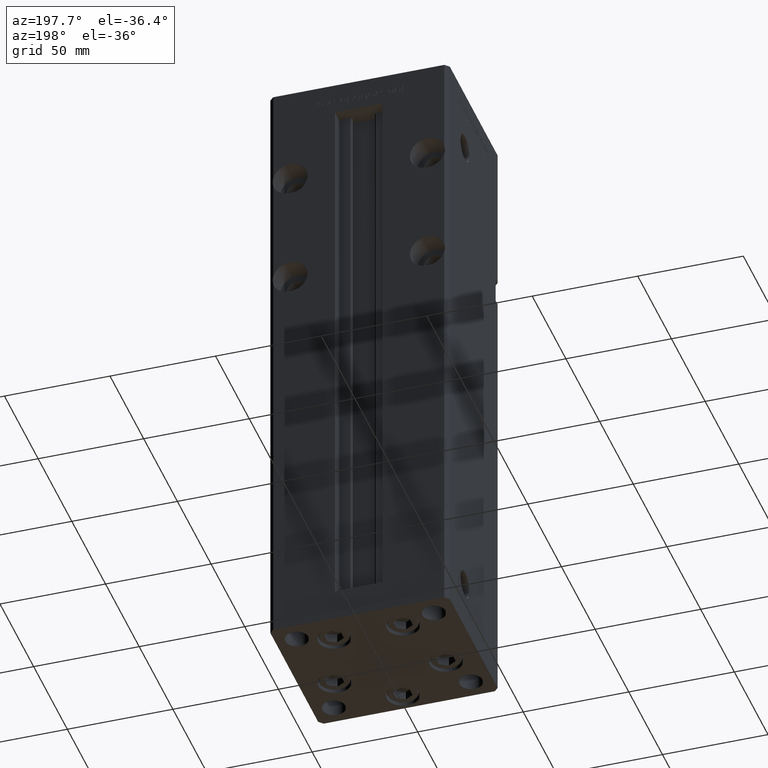
[diagram: clean part render]
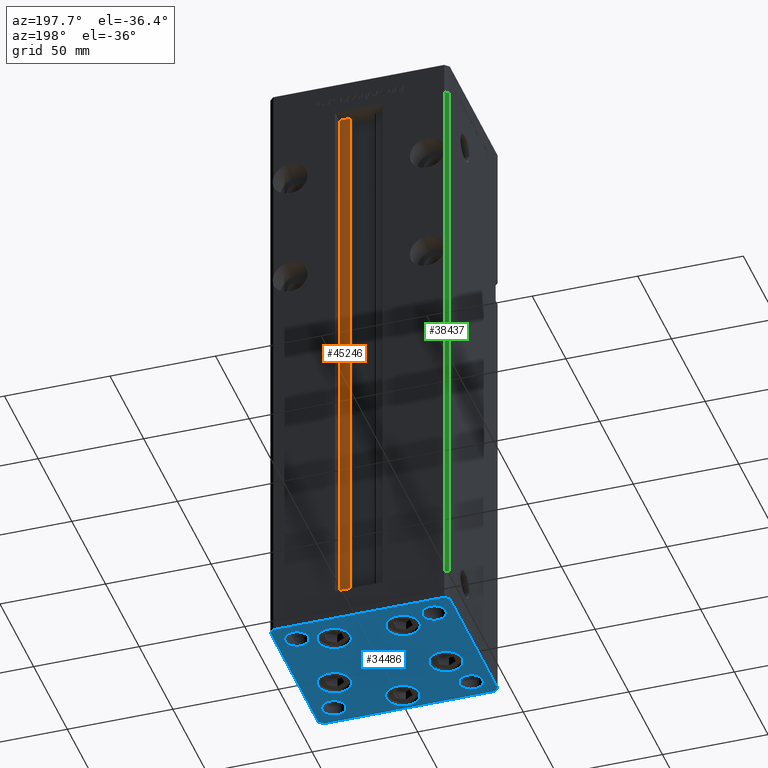
[diagram: same view with three faces highlighted in distinct colors, each labeled with its STEP entity id]
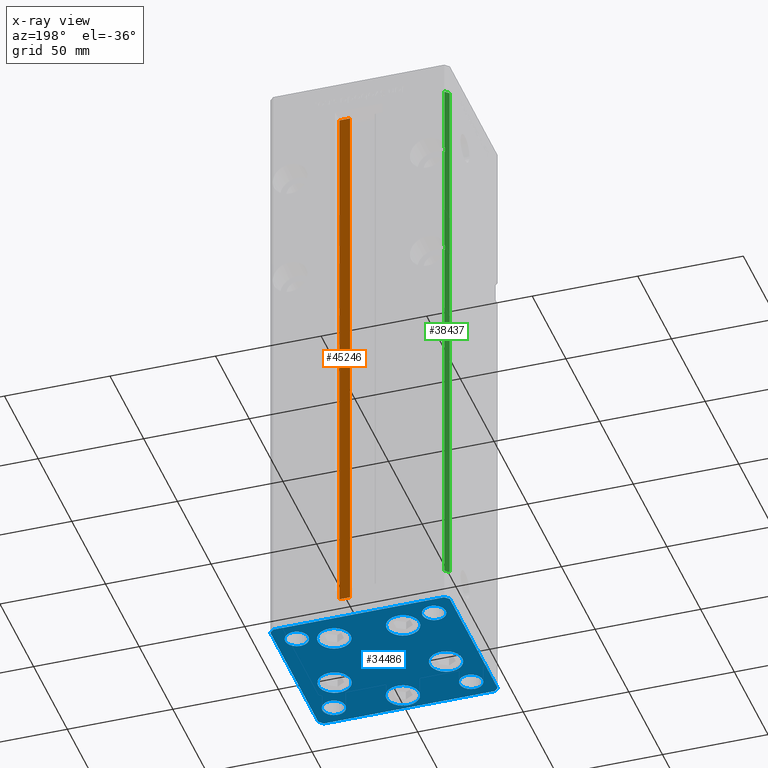
[diagram: x-ray of the same camera — body ghosted, the three highlighted faces saturated]
A machine part, auxiliary view with three faces highlighted in distinct colors.
The next image is the same camera in x-ray (body ghosted, the three faces saturated) — at least one of them is partly hidden behind the body in this view.
Their STEP definitions:

[orange] entity #45246 — the highlighted planar face has unit normal (0, -1, 0).
#4145 = VERTEX_POINT ( 'NONE', #52043 ) ;
#6254 = EDGE_CURVE ( 'NONE', #19799, #13119, #45784, .T. ) ;
#6430 = ORIENTED_EDGE ( 'NONE', *, *, #21875, .F. ) ;
#7976 = CARTESIAN_POINT ( 'NONE',  ( 11.24999999999999822, 31.00000000000000000, 0.000000000000000000 ) ) ;
#8127 = VECTOR ( 'NONE', #38447, 1000.000000000000000 ) ;
#8983 = CARTESIAN_POINT ( 'NONE',  ( 6.183333333333997928, 31.00000000000000000, 0.000000000000000000 ) ) ;
#11383 = FACE_OUTER_BOUND ( 'NONE', #50034, .T. ) ;
#13119 = VERTEX_POINT ( 'NONE', #30303 ) ;
#13711 = AXIS2_PLACEMENT_3D ( 'NONE', #15439, #14898, #36110 ) ;
#13820 = CARTESIAN_POINT ( 'NONE',  ( 6.183333333333997928, 31.00000000000000000, 0.000000000000000000 ) ) ;
#14898 = DIRECTION ( 'NONE',  ( 0.000000000000000000, -1.000000000000000000, 0.000000000000000000 ) ) ;
#15427 = CARTESIAN_POINT ( 'NONE',  ( 11.24999999999999822, 31.00000000000000000, 268.5000000000000000 ) ) ;
#15439 = CARTESIAN_POINT ( 'NONE',  ( 6.183333333333997928, 31.00000000000000000, 0.000000000000000000 ) ) ;
#17943 = ORIENTED_EDGE ( 'NONE', *, *, #6254, .T. ) ;
#19321 = CARTESIAN_POINT ( 'NONE',  ( 0.000000000000000000, 31.00000000000000000, 268.5000000000000000 ) ) ;
#19590 = LINE ( 'NONE', #19321, #44996 ) ;
#19799 = VERTEX_POINT ( 'NONE', #8983 ) ;
#20256 = EDGE_CURVE ( 'NONE', #48472, #13119, #19590, .T. ) ;
#20306 = VECTOR ( 'NONE', #44540, 1000.000000000000000 ) ;
#21875 = EDGE_CURVE ( 'NONE', #19799, #4145, #46488, .T. ) ;
#23617 = DIRECTION ( 'NONE',  ( -1.000000000000000000, 0.000000000000000000, 0.000000000000000000 ) ) ;
#30204 = DIRECTION ( 'NONE',  ( -0.000000000000000000, -0.000000000000000000, 1.000000000000000000 ) ) ;
#30303 = CARTESIAN_POINT ( 'NONE',  ( 6.183333333333997928, 31.00000000000000000, 268.5000000000000000 ) ) ;
#31165 = EDGE_CURVE ( 'NONE', #4145, #48472, #44804, .T. ) ;
#34699 = VECTOR ( 'NONE', #30204, 1000.000000000000000 ) ;
#36110 = DIRECTION ( 'NONE',  ( 0.000000000000000000, -0.000000000000000000, -1.000000000000000000 ) ) ;
#38176 = CARTESIAN_POINT ( 'NONE',  ( 6.183333333333997928, 31.00000000000000000, 0.000000000000000000 ) ) ;
#38447 = DIRECTION ( 'NONE',  ( 1.000000000000000000, 0.000000000000000000, 0.000000000000000000 ) ) ;
#40658 = ORIENTED_EDGE ( 'NONE', *, *, #31165, .F. ) ;
#44540 = DIRECTION ( 'NONE',  ( -0.000000000000000000, -0.000000000000000000, 1.000000000000000000 ) ) ;
#44804 = LINE ( 'NONE', #7976, #20306 ) ;
#44996 = VECTOR ( 'NONE', #23617, 1000.000000000000000 ) ;
#45246 = ADVANCED_FACE ( 'NONE', ( #11383 ), #52251, .F. ) ;
#45784 = LINE ( 'NONE', #13820, #34699 ) ;
#46488 = LINE ( 'NONE', #38176, #8127 ) ;
#46524 = ORIENTED_EDGE ( 'NONE', *, *, #20256, .F. ) ;
#48472 = VERTEX_POINT ( 'NONE', #15427 ) ;
#50034 = EDGE_LOOP ( 'NONE', ( #40658, #6430, #17943, #46524 ) ) ;
#52043 = CARTESIAN_POINT ( 'NONE',  ( 11.24999999999999822, 31.00000000000000000, 0.000000000000000000 ) ) ;
#52251 = PLANE ( 'NONE',  #13711 ) ;

[blue] entity #34486 — the highlighted planar face has unit normal (0, 0, -1).
#72 = VECTOR ( 'NONE', #30770, 1000.000000000000000 ) ;
#333 = DIRECTION ( 'NONE',  ( 1.000000000000000000, 0.000000000000000000, 0.000000000000000000 ) ) ;
#1028 = CARTESIAN_POINT ( 'NONE',  ( -38.00000000000000000, 27.50000000000000355, 0.000000000000000000 ) ) ;
#1090 = CIRCLE ( 'NONE', #20878, 5.499999999999998224 ) ;
#1250 = AXIS2_PLACEMENT_3D ( 'NONE', #43755, #39467, #3432 ) ;
#1283 = DIRECTION ( 'NONE',  ( 0.000000000000000000, -0.000000000000000000, -1.000000000000000000 ) ) ;
#1842 = DIRECTION ( 'NONE',  ( 1.000000000000000000, 0.000000000000000000, 0.000000000000000000 ) ) ;
#1874 = CARTESIAN_POINT ( 'NONE',  ( 3.429011037612589276E-15, -28.00000000000000000, 0.000000000000000000 ) ) ;
#1927 = DIRECTION ( 'NONE',  ( 0.000000000000000000, -0.000000000000000000, -1.000000000000000000 ) ) ;
#2169 = FACE_BOUND ( 'NONE', #20920, .T. ) ;
#2199 = DIRECTION ( 'NONE',  ( -0.000000000000000000, 0.000000000000000000, 1.000000000000000000 ) ) ;
#2286 = CARTESIAN_POINT ( 'NONE',  ( 42.50000000000000711, -35.50000000000000000, 0.000000000000000000 ) ) ;
#2711 = DIRECTION ( 'NONE',  ( -1.000000000000000000, -3.426614273534436165E-16, 0.000000000000000000 ) ) ;
#2869 = VERTEX_POINT ( 'NONE', #5597 ) ;
#2935 = EDGE_CURVE ( 'NONE', #2869, #47915, #16746, .T. ) ;
#3007 = EDGE_LOOP ( 'NONE', ( #23002, #47605 ) ) ;
#3257 = CARTESIAN_POINT ( 'NONE',  ( 42.49999999999992895, 35.50000000000000000, 0.000000000000000000 ) ) ;
#3432 = DIRECTION ( 'NONE',  ( 1.000000000000000000, 0.000000000000000000, 0.000000000000000000 ) ) ;
#3456 = VERTEX_POINT ( 'NONE', #17581 ) ;
#3487 = EDGE_CURVE ( 'NONE', #17276, #41020, #39065, .T. ) ;
#4026 = VECTOR ( 'NONE', #25053, 1000.000000000000000 ) ;
#4094 = CARTESIAN_POINT ( 'NONE',  ( -42.50000000000000000, -35.50000000000000711, 0.000000000000000000 ) ) ;
#4370 = VERTEX_POINT ( 'NONE', #47097 ) ;
#4487 = VERTEX_POINT ( 'NONE', #15408 ) ;
#4777 = AXIS2_PLACEMENT_3D ( 'NONE', #15726, #14928, #10896 ) ;
#4826 = VERTEX_POINT ( 'NONE', #19904 ) ;
#4971 = VERTEX_POINT ( 'NONE', #1028 ) ;
#5134 = DIRECTION ( 'NONE',  ( -0.000000000000000000, 0.000000000000000000, 1.000000000000000000 ) ) ;
#5347 = EDGE_CURVE ( 'NONE', #41020, #40822, #8704, .T. ) ;
#5348 = VERTEX_POINT ( 'NONE', #9749 ) ;
#5597 = CARTESIAN_POINT ( 'NONE',  ( 27.00000000000000355, -27.49999999999999645, 0.000000000000000000 ) ) ;
#5931 = FACE_BOUND ( 'NONE', #11995, .T. ) ;
#5955 = DIRECTION ( 'NONE',  ( 1.000000000000000000, 0.000000000000000000, 0.000000000000000000 ) ) ;
#6300 = LINE ( 'NONE', #2286, #72 ) ;
#6436 = CARTESIAN_POINT ( 'NONE',  ( -40.49999999999999289, -37.50000000000002132, 0.000000000000000000 ) ) ;
#7133 = EDGE_CURVE ( 'NONE', #4971, #38888, #32150, .T. ) ;
#7553 = AXIS2_PLACEMENT_3D ( 'NONE', #35896, #40199, #49040 ) ;
#7617 = EDGE_LOOP ( 'NONE', ( #19365, #29508 ) ) ;
#8085 = VERTEX_POINT ( 'NONE', #10336 ) ;
#8456 = AXIS2_PLACEMENT_3D ( 'NONE', #38663, #22539, #30074 ) ;
#8515 = DIRECTION ( 'NONE',  ( 1.000000000000000000, 0.000000000000000000, 0.000000000000000000 ) ) ;
#8704 = LINE ( 'NONE', #29402, #38959 ) ;
#8911 = EDGE_CURVE ( 'NONE', #15467, #4487, #37363, .T. ) ;
#9647 = ORIENTED_EDGE ( 'NONE', *, *, #49494, .T. ) ;
#9749 = CARTESIAN_POINT ( 'NONE',  ( 42.49999999999992895, 35.50000000000000000, 0.000000000000000000 ) ) ;
#9968 = DIRECTION ( 'NONE',  ( 1.000000000000000000, 0.000000000000000000, 0.000000000000000000 ) ) ;
#10078 = CARTESIAN_POINT ( 'NONE',  ( -42.50000000000000711, 35.49999999999997158, 0.000000000000000000 ) ) ;
#10106 = CIRCLE ( 'NONE', #7553, 7.750000000000003553 ) ;
#10336 = CARTESIAN_POINT ( 'NONE',  ( 8.572913342905422951, 22.75000000000000000, 0.000000000000000000 ) ) ;
#10400 = VERTEX_POINT ( 'NONE', #26484 ) ;
#10670 = VERTEX_POINT ( 'NONE', #16780 ) ;
#10797 = DIRECTION ( 'NONE',  ( -0.000000000000000000, 0.000000000000000000, 1.000000000000000000 ) ) ;
#10896 = DIRECTION ( 'NONE',  ( 1.000000000000000000, 0.000000000000000000, 0.000000000000000000 ) ) ;
#11189 = CIRCLE ( 'NONE', #24937, 5.499999999999998224 ) ;
#11305 = CARTESIAN_POINT ( 'NONE',  ( 40.49999999999991473, 37.50000000000000711, 0.000000000000000000 ) ) ;
#11734 = AXIS2_PLACEMENT_3D ( 'NONE', #1874, #35209, #23124 ) ;
#11995 = EDGE_LOOP ( 'NONE', ( #50465, #51114 ) ) ;
#12753 = EDGE_CURVE ( 'NONE', #4487, #15467, #38320, .T. ) ;
#12967 = EDGE_LOOP ( 'NONE', ( #46463, #34701 ) ) ;
#13225 = ORIENTED_EDGE ( 'NONE', *, *, #27574, .T. ) ;
#13349 = DIRECTION ( 'NONE',  ( 0.000000000000000000, -0.000000000000000000, -1.000000000000000000 ) ) ;
#13487 = FACE_BOUND ( 'NONE', #7617, .T. ) ;
#13800 = EDGE_LOOP ( 'NONE', ( #46885, #31437 ) ) ;
#14928 = DIRECTION ( 'NONE',  ( 0.000000000000000000, -0.000000000000000000, -1.000000000000000000 ) ) ;
#15143 = ORIENTED_EDGE ( 'NONE', *, *, #23900, .T. ) ;
#15189 = EDGE_LOOP ( 'NONE', ( #47550, #52707 ) ) ;
#15243 = VERTEX_POINT ( 'NONE', #28329 ) ;
#15371 = LINE ( 'NONE', #3257, #34626 ) ;
#15408 = CARTESIAN_POINT ( 'NONE',  ( -34.14865316429776954, -9.333333333333337478, 0.000000000000000000 ) ) ;
#15467 = VERTEX_POINT ( 'NONE', #17157 ) ;
#15726 = CARTESIAN_POINT ( 'NONE',  ( -26.39865316429776954, -9.333333333333337478, 0.000000000000000000 ) ) ;
#16125 = VECTOR ( 'NONE', #2711, 1000.000000000000000 ) ;
#16126 = EDGE_CURVE ( 'NONE', #47915, #2869, #40584, .T. ) ;
#16151 = EDGE_CURVE ( 'NONE', #38560, #3456, #1090, .T. ) ;
#16246 = ORIENTED_EDGE ( 'NONE', *, *, #5347, .T. ) ;
#16387 = CIRCLE ( 'NONE', #35274, 5.499999999999998224 ) ;
#16698 = CIRCLE ( 'NONE', #23565, 7.750000000000000000 ) ;
#16746 = CIRCLE ( 'NONE', #1250, 5.499999999999998224 ) ;
#16780 = CARTESIAN_POINT ( 'NONE',  ( -42.50000000000000000, -35.50000000000000711, 0.000000000000000000 ) ) ;
#16926 = VECTOR ( 'NONE', #21029, 1000.000000000000000 ) ;
#16960 = ORIENTED_EDGE ( 'NONE', *, *, #48512, .T. ) ;
#17157 = CARTESIAN_POINT ( 'NONE',  ( -18.64865316429776954, -9.333333333333335702, 0.000000000000000000 ) ) ;
#17276 = VERTEX_POINT ( 'NONE', #6436 ) ;
#17500 = CARTESIAN_POINT ( 'NONE',  ( -42.50000000000000711, 35.49999999999997158, 0.000000000000000000 ) ) ;
#17581 = CARTESIAN_POINT ( 'NONE',  ( 38.00000000000000000, 27.49999999999999645, 0.000000000000000000 ) ) ;
#17702 = DIRECTION ( 'NONE',  ( 1.000000000000000000, 0.000000000000000000, 0.000000000000000000 ) ) ;
#17785 = CARTESIAN_POINT ( 'NONE',  ( 18.64865316429776954, -9.333333333333330373, 0.000000000000000000 ) ) ;
#18017 = VERTEX_POINT ( 'NONE', #24749 ) ;
#18106 = EDGE_CURVE ( 'NONE', #4370, #4826, #29454, .T. ) ;
#18309 = EDGE_CURVE ( 'NONE', #18017, #21927, #47474, .T. ) ;
#18620 = CARTESIAN_POINT ( 'NONE',  ( -40.50000000000000711, 37.49999999999997868, 0.000000000000000000 ) ) ;
#18881 = CARTESIAN_POINT ( 'NONE',  ( -32.50000000000000000, 27.50000000000000355, 0.000000000000000000 ) ) ;
#19365 = ORIENTED_EDGE ( 'NONE', *, *, #46930, .F. ) ;
#19802 = VECTOR ( 'NONE', #24577, 1000.000000000000000 ) ;
#19904 = CARTESIAN_POINT ( 'NONE',  ( -8.572913342905431833, 22.74999999999999645, 0.000000000000000000 ) ) ;
#20112 = DIRECTION ( 'NONE',  ( 1.000000000000000000, 0.000000000000000000, 0.000000000000000000 ) ) ;
#20366 = VERTEX_POINT ( 'NONE', #20612 ) ;
#20523 = CARTESIAN_POINT ( 'NONE',  ( 26.39865316429776954, -9.333333333333330373, 0.000000000000000000 ) ) ;
#20612 = CARTESIAN_POINT ( 'NONE',  ( 40.49999999999991473, 37.50000000000000711, 0.000000000000000000 ) ) ;
#20878 = AXIS2_PLACEMENT_3D ( 'NONE', #30956, #2199, #51384 ) ;
#20920 = EDGE_LOOP ( 'NONE', ( #35790, #45671 ) ) ;
#21029 = DIRECTION ( 'NONE',  ( 0.7071067811865463515, -0.7071067811865487940, 0.000000000000000000 ) ) ;
#21042 = VECTOR ( 'NONE', #40857, 1000.000000000000000 ) ;
#21064 = CARTESIAN_POINT ( 'NONE',  ( -40.50000000000000711, 37.49999999999997868, 0.000000000000000000 ) ) ;
#21809 = FACE_BOUND ( 'NONE', #31695, .T. ) ;
#21927 = VERTEX_POINT ( 'NONE', #34408 ) ;
#21976 = VERTEX_POINT ( 'NONE', #27166 ) ;
#22032 = DIRECTION ( 'NONE',  ( 1.000000000000000000, 0.000000000000000000, 0.000000000000000000 ) ) ;
#22207 = CARTESIAN_POINT ( 'NONE',  ( 26.39865316429776954, -9.333333333333330373, 0.000000000000000000 ) ) ;
#22539 = DIRECTION ( 'NONE',  ( 0.000000000000000000, -0.000000000000000000, -1.000000000000000000 ) ) ;
#22800 = ORIENTED_EDGE ( 'NONE', *, *, #31421, .T. ) ;
#23002 = ORIENTED_EDGE ( 'NONE', *, *, #18106, .T. ) ;
#23124 = DIRECTION ( 'NONE',  ( 1.000000000000000000, 0.000000000000000000, 0.000000000000000000 ) ) ;
#23451 = AXIS2_PLACEMENT_3D ( 'NONE', #52201, #1927, #51654 ) ;
#23518 = DIRECTION ( 'NONE',  ( 1.000000000000000000, 0.000000000000000000, 0.000000000000000000 ) ) ;
#23565 = AXIS2_PLACEMENT_3D ( 'NONE', #41654, #46723, #22032 ) ;
#23900 = EDGE_CURVE ( 'NONE', #36788, #21976, #42523, .T. ) ;
#23949 = CARTESIAN_POINT ( 'NONE',  ( -40.49999999999999289, -37.50000000000002132, 0.000000000000000000 ) ) ;
#24056 = AXIS2_PLACEMENT_3D ( 'NONE', #38104, #1283, #17702 ) ;
#24087 = EDGE_LOOP ( 'NONE', ( #25551, #40829 ) ) ;
#24577 = DIRECTION ( 'NONE',  ( -0.7071067811865463515, -0.7071067811865487940, 0.000000000000000000 ) ) ;
#24660 = EDGE_LOOP ( 'NONE', ( #22800, #37038, #16246, #27404, #9647, #51036, #39898, #13225 ) ) ;
#24749 = CARTESIAN_POINT ( 'NONE',  ( -38.00000000000000000, -27.49999999999999645, 0.000000000000000000 ) ) ;
#24937 = AXIS2_PLACEMENT_3D ( 'NONE', #34268, #30243, #23518 ) ;
#25053 = DIRECTION ( 'NONE',  ( 9.773090005503140331E-17, -1.000000000000000000, 0.000000000000000000 ) ) ;
#25551 = ORIENTED_EDGE ( 'NONE', *, *, #16126, .T. ) ;
#25809 = VERTEX_POINT ( 'NONE', #18620 ) ;
#26400 = VERTEX_POINT ( 'NONE', #10078 ) ;
#26484 = CARTESIAN_POINT ( 'NONE',  ( -7.749999999999996447, -28.00000000000000000, 0.000000000000000000 ) ) ;
#26954 = EDGE_CURVE ( 'NONE', #10400, #15243, #34906, .T. ) ;
#27166 = CARTESIAN_POINT ( 'NONE',  ( 34.14865316429776954, -9.333333333333328596, 0.000000000000000000 ) ) ;
#27288 = AXIS2_PLACEMENT_3D ( 'NONE', #42484, #5134, #9968 ) ;
#27404 = ORIENTED_EDGE ( 'NONE', *, *, #42229, .T. ) ;
#27574 = EDGE_CURVE ( 'NONE', #26400, #10670, #50277, .T. ) ;
#27982 = LINE ( 'NONE', #11305, #16125 ) ;
#28020 = DIRECTION ( 'NONE',  ( 1.000000000000000000, 0.000000000000000000, 0.000000000000000000 ) ) ;
#28171 = DIRECTION ( 'NONE',  ( 0.000000000000000000, -0.000000000000000000, -1.000000000000000000 ) ) ;
#28329 = CARTESIAN_POINT ( 'NONE',  ( 7.750000000000003553, -28.00000000000000000, 0.000000000000000000 ) ) ;
#28824 = AXIS2_PLACEMENT_3D ( 'NONE', #22207, #13349, #49888 ) ;
#29119 = LINE ( 'NONE', #21064, #19802 ) ;
#29402 = CARTESIAN_POINT ( 'NONE',  ( 40.50000000000000000, -37.50000000000000711, 0.000000000000000000 ) ) ;
#29454 = CIRCLE ( 'NONE', #32028, 7.750000000000000000 ) ;
#29508 = ORIENTED_EDGE ( 'NONE', *, *, #7133, .F. ) ;
#29876 = PLANE ( 'NONE',  #27288 ) ;
#30020 = CIRCLE ( 'NONE', #24056, 7.750000000000003553 ) ;
#30074 = DIRECTION ( 'NONE',  ( 1.000000000000000000, 0.000000000000000000, 0.000000000000000000 ) ) ;
#30243 = DIRECTION ( 'NONE',  ( -0.000000000000000000, 0.000000000000000000, 1.000000000000000000 ) ) ;
#30451 = CIRCLE ( 'NONE', #41611, 7.750000000000000000 ) ;
#30665 = FACE_BOUND ( 'NONE', #15189, .T. ) ;
#30770 = DIRECTION ( 'NONE',  ( -1.172770800660376741E-15, 1.000000000000000000, 0.000000000000000000 ) ) ;
#30926 = FACE_BOUND ( 'NONE', #12967, .T. ) ;
#30956 = CARTESIAN_POINT ( 'NONE',  ( 32.50000000000000000, 27.49999999999999645, 0.000000000000000000 ) ) ;
#31028 = CARTESIAN_POINT ( 'NONE',  ( 40.50000000000000000, -37.50000000000000711, 0.000000000000000000 ) ) ;
#31421 = EDGE_CURVE ( 'NONE', #10670, #17276, #44682, .T. ) ;
#31437 = ORIENTED_EDGE ( 'NONE', *, *, #18309, .T. ) ;
#31650 = CIRCLE ( 'NONE', #8456, 5.499999999999998224 ) ;
#31695 = EDGE_LOOP ( 'NONE', ( #15143, #16960 ) ) ;
#31749 = DIRECTION ( 'NONE',  ( -0.7071067811865474617, 0.7071067811865474617, 0.000000000000000000 ) ) ;
#32028 = AXIS2_PLACEMENT_3D ( 'NONE', #37352, #37874, #1842 ) ;
#32150 = CIRCLE ( 'NONE', #33850, 5.499999999999998224 ) ;
#32718 = CARTESIAN_POINT ( 'NONE',  ( -16.32291334290543006, 22.74999999999999645, 0.000000000000000000 ) ) ;
#33850 = AXIS2_PLACEMENT_3D ( 'NONE', #18881, #10797, #5955 ) ;
#34052 = EDGE_CURVE ( 'NONE', #44783, #8085, #10106, .T. ) ;
#34268 = CARTESIAN_POINT ( 'NONE',  ( -32.50000000000000000, 27.50000000000000355, 0.000000000000000000 ) ) ;
#34408 = CARTESIAN_POINT ( 'NONE',  ( -27.00000000000000355, -27.49999999999999645, 0.000000000000000000 ) ) ;
#34428 = FACE_BOUND ( 'NONE', #3007, .T. ) ;
#34486 = ADVANCED_FACE ( 'NONE', ( #34428, #2169, #21809, #30665, #5931, #30926, #50293, #13487, #47310, #42219 ), #29876, .T. ) ;
#34543 = EDGE_CURVE ( 'NONE', #20366, #25809, #27982, .T. ) ;
#34626 = VECTOR ( 'NONE', #31749, 1000.000000000000114 ) ;
#34701 = ORIENTED_EDGE ( 'NONE', *, *, #16151, .F. ) ;
#34906 = CIRCLE ( 'NONE', #11734, 7.750000000000000000 ) ;
#35209 = DIRECTION ( 'NONE',  ( 0.000000000000000000, -0.000000000000000000, -1.000000000000000000 ) ) ;
#35274 = AXIS2_PLACEMENT_3D ( 'NONE', #41834, #49380, #20112 ) ;
#35305 = CARTESIAN_POINT ( 'NONE',  ( 27.00000000000000355, 27.49999999999999645, 0.000000000000000000 ) ) ;
#35790 = ORIENTED_EDGE ( 'NONE', *, *, #41658, .T. ) ;
#35896 = CARTESIAN_POINT ( 'NONE',  ( 16.32291334290542295, 22.75000000000000000, 0.000000000000000000 ) ) ;
#36324 = AXIS2_PLACEMENT_3D ( 'NONE', #40273, #40797, #40524 ) ;
#36788 = VERTEX_POINT ( 'NONE', #17785 ) ;
#37038 = ORIENTED_EDGE ( 'NONE', *, *, #3487, .T. ) ;
#37348 = EDGE_CURVE ( 'NONE', #4826, #4370, #39393, .T. ) ;
#37352 = CARTESIAN_POINT ( 'NONE',  ( -16.32291334290543006, 22.74999999999999645, 0.000000000000000000 ) ) ;
#37363 = CIRCLE ( 'NONE', #4777, 7.750000000000000000 ) ;
#37473 = AXIS2_PLACEMENT_3D ( 'NONE', #40367, #39578, #28020 ) ;
#37730 = DIRECTION ( 'NONE',  ( 0.7071067811865474617, 0.7071067811865474617, 0.000000000000000000 ) ) ;
#37874 = DIRECTION ( 'NONE',  ( 0.000000000000000000, -0.000000000000000000, -1.000000000000000000 ) ) ;
#37882 = EDGE_CURVE ( 'NONE', #21927, #18017, #31650, .T. ) ;
#38104 = CARTESIAN_POINT ( 'NONE',  ( 16.32291334290542295, 22.75000000000000000, 0.000000000000000000 ) ) ;
#38320 = CIRCLE ( 'NONE', #37473, 7.750000000000000000 ) ;
#38560 = VERTEX_POINT ( 'NONE', #35305 ) ;
#38663 = CARTESIAN_POINT ( 'NONE',  ( -32.50000000000000000, -27.49999999999999645, 0.000000000000000000 ) ) ;
#38888 = VERTEX_POINT ( 'NONE', #52907 ) ;
#38959 = VECTOR ( 'NONE', #37730, 1000.000000000000114 ) ;
#39065 = LINE ( 'NONE', #23949, #21042 ) ;
#39393 = CIRCLE ( 'NONE', #49668, 7.750000000000000000 ) ;
#39467 = DIRECTION ( 'NONE',  ( 0.000000000000000000, -0.000000000000000000, -1.000000000000000000 ) ) ;
#39578 = DIRECTION ( 'NONE',  ( 0.000000000000000000, -0.000000000000000000, -1.000000000000000000 ) ) ;
#39898 = ORIENTED_EDGE ( 'NONE', *, *, #46172, .T. ) ;
#40199 = DIRECTION ( 'NONE',  ( 0.000000000000000000, -0.000000000000000000, -1.000000000000000000 ) ) ;
#40273 = CARTESIAN_POINT ( 'NONE',  ( -32.50000000000000000, -27.49999999999999645, 0.000000000000000000 ) ) ;
#40367 = CARTESIAN_POINT ( 'NONE',  ( -26.39865316429776954, -9.333333333333337478, 0.000000000000000000 ) ) ;
#40524 = DIRECTION ( 'NONE',  ( 1.000000000000000000, 0.000000000000000000, 0.000000000000000000 ) ) ;
#40584 = CIRCLE ( 'NONE', #23451, 5.499999999999998224 ) ;
#40797 = DIRECTION ( 'NONE',  ( 0.000000000000000000, -0.000000000000000000, -1.000000000000000000 ) ) ;
#40822 = VERTEX_POINT ( 'NONE', #50118 ) ;
#40829 = ORIENTED_EDGE ( 'NONE', *, *, #2935, .T. ) ;
#40857 = DIRECTION ( 'NONE',  ( 1.000000000000000000, 1.713307136767217096E-16, 0.000000000000000000 ) ) ;
#41020 = VERTEX_POINT ( 'NONE', #31028 ) ;
#41611 = AXIS2_PLACEMENT_3D ( 'NONE', #20523, #45216, #333 ) ;
#41654 = CARTESIAN_POINT ( 'NONE',  ( 3.429011037612589276E-15, -28.00000000000000000, 0.000000000000000000 ) ) ;
#41658 = EDGE_CURVE ( 'NONE', #8085, #44783, #30020, .T. ) ;
#41834 = CARTESIAN_POINT ( 'NONE',  ( 32.50000000000000000, 27.49999999999999645, 0.000000000000000000 ) ) ;
#42219 = FACE_BOUND ( 'NONE', #13800, .T. ) ;
#42229 = EDGE_CURVE ( 'NONE', #40822, #5348, #6300, .T. ) ;
#42484 = CARTESIAN_POINT ( 'NONE',  ( 0.000000000000000000, 0.000000000000000000, 0.000000000000000000 ) ) ;
#42523 = CIRCLE ( 'NONE', #28824, 7.750000000000000000 ) ;
#43755 = CARTESIAN_POINT ( 'NONE',  ( 32.50000000000000000, -27.49999999999999645, 0.000000000000000000 ) ) ;
#44682 = LINE ( 'NONE', #4094, #16926 ) ;
#44783 = VERTEX_POINT ( 'NONE', #50439 ) ;
#45216 = DIRECTION ( 'NONE',  ( 0.000000000000000000, -0.000000000000000000, -1.000000000000000000 ) ) ;
#45671 = ORIENTED_EDGE ( 'NONE', *, *, #34052, .T. ) ;
#46172 = EDGE_CURVE ( 'NONE', #25809, #26400, #29119, .T. ) ;
#46463 = ORIENTED_EDGE ( 'NONE', *, *, #47926, .F. ) ;
#46723 = DIRECTION ( 'NONE',  ( 0.000000000000000000, -0.000000000000000000, -1.000000000000000000 ) ) ;
#46885 = ORIENTED_EDGE ( 'NONE', *, *, #37882, .T. ) ;
#46930 = EDGE_CURVE ( 'NONE', #38888, #4971, #11189, .T. ) ;
#47097 = CARTESIAN_POINT ( 'NONE',  ( -24.07291334290543006, 22.74999999999999645, 0.000000000000000000 ) ) ;
#47310 = FACE_OUTER_BOUND ( 'NONE', #24660, .T. ) ;
#47474 = CIRCLE ( 'NONE', #36324, 5.499999999999998224 ) ;
#47550 = ORIENTED_EDGE ( 'NONE', *, *, #26954, .T. ) ;
#47605 = ORIENTED_EDGE ( 'NONE', *, *, #37348, .T. ) ;
#47915 = VERTEX_POINT ( 'NONE', #49893 ) ;
#47926 = EDGE_CURVE ( 'NONE', #3456, #38560, #16387, .T. ) ;
#48512 = EDGE_CURVE ( 'NONE', #21976, #36788, #30451, .T. ) ;
#49040 = DIRECTION ( 'NONE',  ( 1.000000000000000000, 0.000000000000000000, 0.000000000000000000 ) ) ;
#49380 = DIRECTION ( 'NONE',  ( -0.000000000000000000, 0.000000000000000000, 1.000000000000000000 ) ) ;
#49494 = EDGE_CURVE ( 'NONE', #5348, #20366, #15371, .T. ) ;
#49668 = AXIS2_PLACEMENT_3D ( 'NONE', #32718, #28171, #8515 ) ;
#49888 = DIRECTION ( 'NONE',  ( 1.000000000000000000, 0.000000000000000000, 0.000000000000000000 ) ) ;
#49893 = CARTESIAN_POINT ( 'NONE',  ( 38.00000000000000000, -27.49999999999999645, 0.000000000000000000 ) ) ;
#50118 = CARTESIAN_POINT ( 'NONE',  ( 42.50000000000000711, -35.50000000000000000, 0.000000000000000000 ) ) ;
#50277 = LINE ( 'NONE', #17500, #4026 ) ;
#50293 = FACE_BOUND ( 'NONE', #24087, .T. ) ;
#50439 = CARTESIAN_POINT ( 'NONE',  ( 24.07291334290542650, 22.75000000000000000, 0.000000000000000000 ) ) ;
#50465 = ORIENTED_EDGE ( 'NONE', *, *, #12753, .T. ) ;
#51036 = ORIENTED_EDGE ( 'NONE', *, *, #34543, .T. ) ;
#51114 = ORIENTED_EDGE ( 'NONE', *, *, #8911, .T. ) ;
#51384 = DIRECTION ( 'NONE',  ( 1.000000000000000000, 0.000000000000000000, 0.000000000000000000 ) ) ;
#51487 = EDGE_CURVE ( 'NONE', #15243, #10400, #16698, .T. ) ;
#51654 = DIRECTION ( 'NONE',  ( 1.000000000000000000, 0.000000000000000000, 0.000000000000000000 ) ) ;
#52201 = CARTESIAN_POINT ( 'NONE',  ( 32.50000000000000000, -27.49999999999999645, 0.000000000000000000 ) ) ;
#52707 = ORIENTED_EDGE ( 'NONE', *, *, #51487, .T. ) ;
#52907 = CARTESIAN_POINT ( 'NONE',  ( -27.00000000000000355, 27.50000000000000355, 0.000000000000000000 ) ) ;

[green] entity #38437 — the highlighted planar face has unit normal (0.7071, -0.7071, 0).
#698 = ORIENTED_EDGE ( 'NONE', *, *, #14698, .T. ) ;
#2184 = VERTEX_POINT ( 'NONE', #19173 ) ;
#2575 = CARTESIAN_POINT ( 'NONE',  ( -40.83505154639175316, 37.16494845360825394, 236.6857074889016985 ) ) ;
#3498 = DIRECTION ( 'NONE',  ( -0.000000000000000000, -0.000000000000000000, -1.000000000000000000 ) ) ;
#3881 = DIRECTION ( 'NONE',  ( -0.7071067811865500152, -0.7071067811865451302, 0.000000000000000000 ) ) ;
#6063 = VECTOR ( 'NONE', #3881, 1000.000000000000114 ) ;
#6196 = VECTOR ( 'NONE', #3498, 1000.000000000000000 ) ;
#7112 = CARTESIAN_POINT ( 'NONE',  ( -42.50000000000001421, 35.50000000000000711, 268.5000000000000000 ) ) ;
#8697 = LINE ( 'NONE', #20301, #6063 ) ;
#9461 = LINE ( 'NONE', #9994, #50653 ) ;
#9527 = ORIENTED_EDGE ( 'NONE', *, *, #43283, .F. ) ;
#9994 = CARTESIAN_POINT ( 'NONE',  ( -40.50000000000000711, 37.50000000000000000, 268.5000000000000000 ) ) ;
#10987 = CARTESIAN_POINT ( 'NONE',  ( -40.50000000000000711, 37.50000000000000000, 238.0155644370746302 ) ) ;
#11377 = VERTEX_POINT ( 'NONE', #7112 ) ;
#12881 = CARTESIAN_POINT ( 'NONE',  ( -40.50000000000000711, 37.50000000000000000, 178.9844355629253982 ) ) ;
#14698 = EDGE_CURVE ( 'NONE', #40090, #2184, #44358, .T. ) ;
#15615 = EDGE_CURVE ( 'NONE', #11377, #26352, #39164, .T. ) ;
#16087 = EDGE_CURVE ( 'NONE', #31440, #34851, #37957, .T. ) ;
#17070 = DIRECTION ( 'NONE',  ( 0.7071067811865500152, 0.7071067811865451302, 0.000000000000000000 ) ) ;
#17367 = ORIENTED_EDGE ( 'NONE', *, *, #16087, .T. ) ;
#18726 = VECTOR ( 'NONE', #38993, 1000.000000000000114 ) ;
#18963 = CARTESIAN_POINT ( 'NONE',  ( -42.50000000000001421, 35.50000000000000711, 0.000000000000000000 ) ) ;
#19173 = CARTESIAN_POINT ( 'NONE',  ( -40.50000000000000711, 37.50000000000000000, 183.0155644370746586 ) ) ;
#19352 = ORIENTED_EDGE ( 'NONE', *, *, #15615, .F. ) ;
#20301 = CARTESIAN_POINT ( 'NONE',  ( -40.50000000000000711, 37.50000000000000000, 268.5000000000000000 ) ) ;
#20320 = CARTESIAN_POINT ( 'NONE',  ( -40.50000000000000711, 37.50000000000000000, 268.5000000000000000 ) ) ;
#22501 = ORIENTED_EDGE ( 'NONE', *, *, #43955, .T. ) ;
#22954 = CARTESIAN_POINT ( 'NONE',  ( -40.50000000000000711, 37.50000000000000000, 178.9844355629253982 ) ) ;
#25481 = EDGE_LOOP ( 'NONE', ( #17367, #39369, #698, #22501, #38682, #42892, #19352, #9527 ) ) ;
#26138 = DIRECTION ( 'NONE',  ( -0.000000000000000000, -0.000000000000000000, -1.000000000000000000 ) ) ;
#26352 = VERTEX_POINT ( 'NONE', #18963 ) ;
#30899 =( BOUNDED_CURVE ( )  B_SPLINE_CURVE ( 3, ( #42408, #33559, #49695, #12881 ),
 .UNSPECIFIED., .F., .T. ) 
 B_SPLINE_CURVE_WITH_KNOTS ( ( 4, 4 ),
 ( 2.894783720120222004, 3.388401587059364228 ),
 .UNSPECIFIED. ) 
 CURVE ( )  GEOMETRIC_REPRESENTATION_ITEM ( )  RATIONAL_B_SPLINE_CURVE ( ( 1.000000000000000000, 0.9797979797979801120, 0.9797979797979801120, 1.000000000000000000 ) ) 
 REPRESENTATION_ITEM ( '' )  );
#31059 = CARTESIAN_POINT ( 'NONE',  ( -40.50000000000000711, 37.50000000000000000, 238.0155644370746302 ) ) ;
#31440 = VERTEX_POINT ( 'NONE', #32590 ) ;
#32526 = CARTESIAN_POINT ( 'NONE',  ( -40.50000000000000711, 37.50000000000000000, 268.5000000000000000 ) ) ;
#32590 = CARTESIAN_POINT ( 'NONE',  ( -40.50000000000000711, 37.50000000000000000, 268.5000000000000000 ) ) ;
#33254 = CARTESIAN_POINT ( 'NONE',  ( -40.50000000000000711, 37.50000000000000000, 0.000000000000000000 ) ) ;
#33559 = CARTESIAN_POINT ( 'NONE',  ( -40.83505154639175316, 37.16494845360825394, 181.6857074889016985 ) ) ;
#33651 = CARTESIAN_POINT ( 'NONE',  ( -40.50000000000000711, 37.50000000000000000, 268.5000000000000000 ) ) ;
#34461 = EDGE_CURVE ( 'NONE', #38074, #26352, #46775, .T. ) ;
#34588 = VECTOR ( 'NONE', #26138, 1000.000000000000000 ) ;
#34851 = VERTEX_POINT ( 'NONE', #10987 ) ;
#37685 = AXIS2_PLACEMENT_3D ( 'NONE', #20320, #40991, #17070 ) ;
#37957 = LINE ( 'NONE', #33651, #34588 ) ;
#38074 = VERTEX_POINT ( 'NONE', #33254 ) ;
#38437 = ADVANCED_FACE ( 'NONE', ( #49579 ), #45013, .F. ) ;
#38682 = ORIENTED_EDGE ( 'NONE', *, *, #46252, .T. ) ;
#38993 = DIRECTION ( 'NONE',  ( -0.7071067811865500152, -0.7071067811865451302, 0.000000000000000000 ) ) ;
#39164 = LINE ( 'NONE', #39696, #40547 ) ;
#39369 = ORIENTED_EDGE ( 'NONE', *, *, #48194, .T. ) ;
#39696 = CARTESIAN_POINT ( 'NONE',  ( -42.50000000000001421, 35.50000000000000711, 268.5000000000000000 ) ) ;
#40090 = VERTEX_POINT ( 'NONE', #44971 ) ;
#40547 = VECTOR ( 'NONE', #44249, 1000.000000000000000 ) ;
#40991 = DIRECTION ( 'NONE',  ( 0.7071067811865451302, -0.7071067811865500152, 0.000000000000000000 ) ) ;
#42408 = CARTESIAN_POINT ( 'NONE',  ( -40.50000000000000711, 37.50000000000000000, 183.0155644370746586 ) ) ;
#42892 = ORIENTED_EDGE ( 'NONE', *, *, #34461, .T. ) ;
#43015 = CARTESIAN_POINT ( 'NONE',  ( -40.50000000000000711, 37.50000000000000000, 0.000000000000000000 ) ) ;
#43283 = EDGE_CURVE ( 'NONE', #31440, #11377, #8697, .T. ) ;
#43942 =( BOUNDED_CURVE ( )  B_SPLINE_CURVE ( 3, ( #31059, #2575, #51754, #47441 ),
 .UNSPECIFIED., .F., .F. ) 
 B_SPLINE_CURVE_WITH_KNOTS ( ( 4, 4 ),
 ( 2.894783720120222004, 3.388401587059364228 ),
 .UNSPECIFIED. ) 
 CURVE ( )  GEOMETRIC_REPRESENTATION_ITEM ( )  RATIONAL_B_SPLINE_CURVE ( ( 1.000000000000000000, 0.9797979797979801120, 0.9797979797979801120, 1.000000000000000000 ) ) 
 REPRESENTATION_ITEM ( '' )  );
#43955 = EDGE_CURVE ( 'NONE', #2184, #47406, #30899, .T. ) ;
#44249 = DIRECTION ( 'NONE',  ( -0.000000000000000000, -0.000000000000000000, -1.000000000000000000 ) ) ;
#44358 = LINE ( 'NONE', #32526, #6196 ) ;
#44971 = CARTESIAN_POINT ( 'NONE',  ( -40.50000000000000711, 37.50000000000000000, 233.9844355629253982 ) ) ;
#45013 = PLANE ( 'NONE',  #37685 ) ;
#46252 = EDGE_CURVE ( 'NONE', #47406, #38074, #9461, .T. ) ;
#46775 = LINE ( 'NONE', #43015, #18726 ) ;
#46802 = DIRECTION ( 'NONE',  ( -0.000000000000000000, -0.000000000000000000, -1.000000000000000000 ) ) ;
#47406 = VERTEX_POINT ( 'NONE', #22954 ) ;
#47441 = CARTESIAN_POINT ( 'NONE',  ( -40.50000000000000711, 37.50000000000000000, 233.9844355629253982 ) ) ;
#48194 = EDGE_CURVE ( 'NONE', #34851, #40090, #43942, .T. ) ;
#49579 = FACE_OUTER_BOUND ( 'NONE', #25481, .T. ) ;
#49695 = CARTESIAN_POINT ( 'NONE',  ( -40.83505154639175316, 37.16494845360825394, 180.3142925110983583 ) ) ;
#50653 = VECTOR ( 'NONE', #46802, 1000.000000000000000 ) ;
#51754 = CARTESIAN_POINT ( 'NONE',  ( -40.83505154639175316, 37.16494845360825394, 235.3142925110983299 ) ) ;